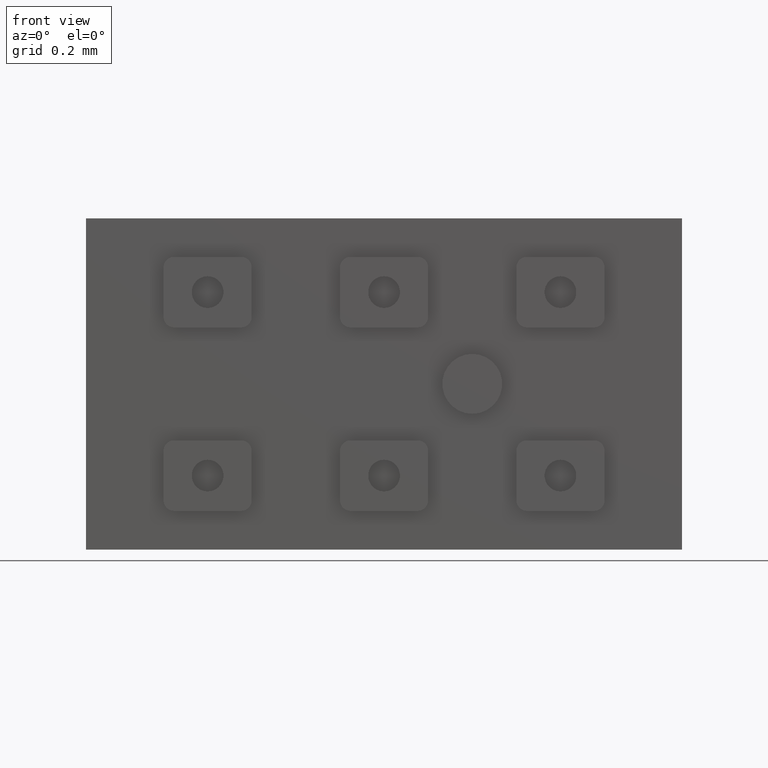
[diagram: clean part render]
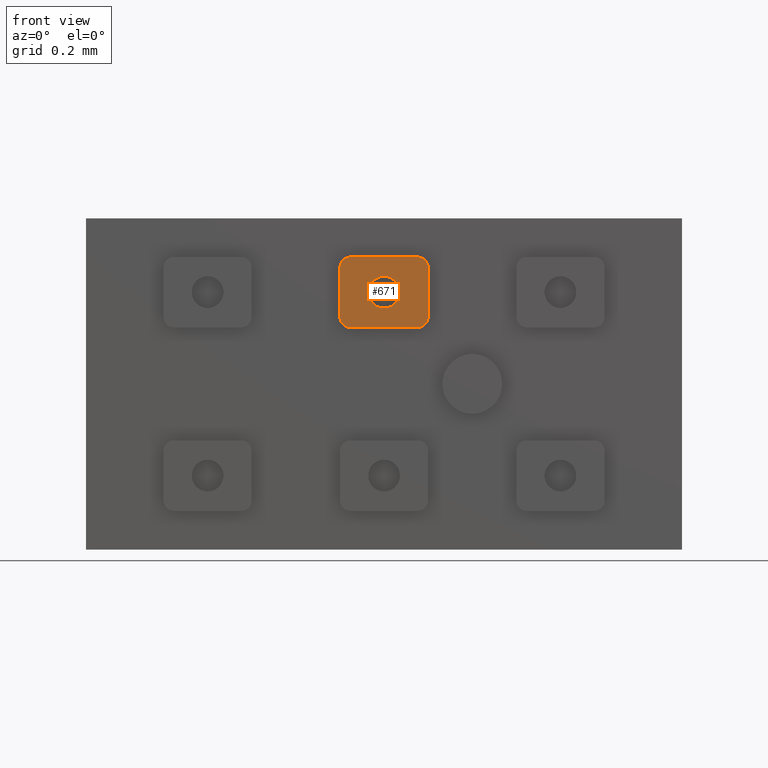
[diagram: same view with one face highlighted and labeled with its STEP entity id]
A machine part, front view. The second image highlights one B-rep face of the part: STEP entity #671.
In plain terms, the highlighted planar face has unit normal (0, 1, 0).
Its self-contained STEP definition (entity closure, byte-faithful):
#28 = DIRECTION ( 'NONE',  ( 0.000000000000000000, 1.000000000000000000, 0.000000000000000000 ) ) ;
#43 = CIRCLE ( 'NONE', #1425, 0.03000000000000002318 ) ;
#82 = VECTOR ( 'NONE', #2068, 1000.000000000000000 ) ;
#98 = EDGE_CURVE ( 'NONE', #166, #2076, #1464, .T. ) ;
#139 = DIRECTION ( 'NONE',  ( 0.000000000000000000, 0.000000000000000000, 1.000000000000000000 ) ) ;
#166 = VERTEX_POINT ( 'NONE', #505 ) ;
#232 = DIRECTION ( 'NONE',  ( 0.000000000000000000, 1.000000000000000000, 0.000000000000000000 ) ) ;
#243 = FACE_BOUND ( 'NONE', #1005, .T. ) ;
#244 = DIRECTION ( 'NONE',  ( 0.000000000000000000, 0.000000000000000000, 1.000000000000000000 ) ) ;
#289 = VERTEX_POINT ( 'NONE', #678 ) ;
#363 = ORIENTED_EDGE ( 'NONE', *, *, #2297, .F. ) ;
#373 = CIRCLE ( 'NONE', #462, 0.04500000000000001221 ) ;
#374 = ORIENTED_EDGE ( 'NONE', *, *, #2301, .F. ) ;
#434 = CARTESIAN_POINT ( 'NONE',  ( 0.1250000000000001110, -0.3749999999999999445, 0.1900000000000035272 ) ) ;
#454 = ORIENTED_EDGE ( 'NONE', *, *, #913, .F. ) ;
#462 = AXIS2_PLACEMENT_3D ( 'NONE', #1783, #641, #613 ) ;
#499 = CARTESIAN_POINT ( 'NONE',  ( -0.09500000000000002887, -0.3749999999999999445, 0.1600000000000035560 ) ) ;
#505 = CARTESIAN_POINT ( 'NONE',  ( 0.09500000000000002887, -0.3749999999999999445, 0.1600000000000035560 ) ) ;
#534 = VECTOR ( 'NONE', #2553, 1000.000000000000000 ) ;
#590 = ORIENTED_EDGE ( 'NONE', *, *, #645, .F. ) ;
#613 = DIRECTION ( 'NONE',  ( 0.000000000000000000, 0.000000000000000000, 1.000000000000000000 ) ) ;
#641 = DIRECTION ( 'NONE',  ( 0.000000000000000000, 1.000000000000000000, 0.000000000000000000 ) ) ;
#645 = EDGE_CURVE ( 'NONE', #2292, #166, #43, .T. ) ;
#671 = ADVANCED_FACE ( 'NONE', ( #243, #2037 ), #1854, .F. ) ;
#678 = CARTESIAN_POINT ( 'NONE',  ( -0.1250000000000000000, -0.3749999999999999445, 0.3300000000000035683 ) ) ;
#728 = DIRECTION ( 'NONE',  ( 0.000000000000000000, 1.000000000000000000, -0.000000000000000000 ) ) ;
#731 = CARTESIAN_POINT ( 'NONE',  ( 0.09500000000000002887, -0.3749999999999999445, 0.3600000000000035949 ) ) ;
#732 = VERTEX_POINT ( 'NONE', #1419 ) ;
#762 = CIRCLE ( 'NONE', #1635, 0.02999999999999997113 ) ;
#857 = EDGE_LOOP ( 'NONE', ( #1134, #2253, #590, #1471, #1312, #374, #363, #454 ) ) ;
#859 = DIRECTION ( 'NONE',  ( 0.000000000000000000, -0.000000000000000000, 1.000000000000000000 ) ) ;
#864 = CARTESIAN_POINT ( 'NONE',  ( -0.09500000000000002887, -0.3749999999999999445, 0.1900000000000035272 ) ) ;
#871 = VERTEX_POINT ( 'NONE', #1334 ) ;
#913 = EDGE_CURVE ( 'NONE', #732, #289, #972, .T. ) ;
#922 = EDGE_CURVE ( 'NONE', #871, #986, #373, .T. ) ;
#940 = DIRECTION ( 'NONE',  ( 0.000000000000000000, 0.000000000000000000, -1.000000000000000000 ) ) ;
#972 = LINE ( 'NONE', #987, #534 ) ;
#986 = VERTEX_POINT ( 'NONE', #2169 ) ;
#987 = CARTESIAN_POINT ( 'NONE',  ( -0.1250000000000000000, -0.3749999999999999445, 0.1900000000000035272 ) ) ;
#1005 = EDGE_LOOP ( 'NONE', ( #1530, #2353 ) ) ;
#1018 = CARTESIAN_POINT ( 'NONE',  ( -0.09500000000000002887, -0.3749999999999999445, 0.3600000000000035394 ) ) ;
#1057 = VERTEX_POINT ( 'NONE', #1412 ) ;
#1134 = ORIENTED_EDGE ( 'NONE', *, *, #1627, .F. ) ;
#1154 = DIRECTION ( 'NONE',  ( 0.000000000000000000, 1.000000000000000000, 0.000000000000000000 ) ) ;
#1168 = VECTOR ( 'NONE', #2557, 1000.000000000000000 ) ;
#1218 = VERTEX_POINT ( 'NONE', #2499 ) ;
#1310 = CIRCLE ( 'NONE', #1847, 0.04500000000000001221 ) ;
#1311 = VERTEX_POINT ( 'NONE', #731 ) ;
#1312 = ORIENTED_EDGE ( 'NONE', *, *, #1679, .F. ) ;
#1334 = CARTESIAN_POINT ( 'NONE',  ( 5.510910596163088785E-18, -0.3749999999999999445, 0.2150000000000035216 ) ) ;
#1361 = LINE ( 'NONE', #1018, #1168 ) ;
#1412 = CARTESIAN_POINT ( 'NONE',  ( 0.1250000000000001110, -0.3749999999999999445, 0.3300000000000035683 ) ) ;
#1419 = CARTESIAN_POINT ( 'NONE',  ( -0.1250000000000000000, -0.3749999999999999445, 0.1900000000000035272 ) ) ;
#1425 = AXIS2_PLACEMENT_3D ( 'NONE', #2236, #232, #1456 ) ;
#1456 = DIRECTION ( 'NONE',  ( 0.000000000000000000, 0.000000000000000000, 1.000000000000000000 ) ) ;
#1464 = LINE ( 'NONE', #1897, #82 ) ;
#1469 = CARTESIAN_POINT ( 'NONE',  ( -0.09500000000000002887, -0.3749999999999999445, 0.1900000000000035272 ) ) ;
#1471 = ORIENTED_EDGE ( 'NONE', *, *, #1477, .F. ) ;
#1477 = EDGE_CURVE ( 'NONE', #1057, #2292, #1779, .T. ) ;
#1505 = DIRECTION ( 'NONE',  ( 0.000000000000000000, 1.000000000000000000, 0.000000000000000000 ) ) ;
#1530 = ORIENTED_EDGE ( 'NONE', *, *, #1990, .T. ) ;
#1534 = AXIS2_PLACEMENT_3D ( 'NONE', #1567, #1154, #1773 ) ;
#1567 = CARTESIAN_POINT ( 'NONE',  ( -0.09500000000000002887, -0.3749999999999999445, 0.3300000000000035683 ) ) ;
#1627 = EDGE_CURVE ( 'NONE', #2076, #732, #762, .T. ) ;
#1635 = AXIS2_PLACEMENT_3D ( 'NONE', #864, #1505, #139 ) ;
#1679 = EDGE_CURVE ( 'NONE', #1311, #1057, #2535, .T. ) ;
#1700 = CIRCLE ( 'NONE', #1534, 0.02999999999999997113 ) ;
#1746 = CARTESIAN_POINT ( 'NONE',  ( 0.1250000000000000555, -0.3749999999999999445, 0.1900000000000035272 ) ) ;
#1773 = DIRECTION ( 'NONE',  ( 0.000000000000000000, 0.000000000000000000, 1.000000000000000000 ) ) ;
#1779 = LINE ( 'NONE', #434, #1945 ) ;
#1783 = CARTESIAN_POINT ( 'NONE',  ( 0.000000000000000000, -0.3749999999999999445, 0.2600000000000035061 ) ) ;
#1847 = AXIS2_PLACEMENT_3D ( 'NONE', #2049, #28, #244 ) ;
#1854 = PLANE ( 'NONE',  #2407 ) ;
#1897 = CARTESIAN_POINT ( 'NONE',  ( -0.09500000000000002887, -0.3749999999999999445, 0.1600000000000035560 ) ) ;
#1920 = CARTESIAN_POINT ( 'NONE',  ( 0.09500000000000002887, -0.3749999999999999445, 0.3300000000000035683 ) ) ;
#1923 = AXIS2_PLACEMENT_3D ( 'NONE', #1920, #728, #940 ) ;
#1945 = VECTOR ( 'NONE', #2166, 1000.000000000000000 ) ;
#1990 = EDGE_CURVE ( 'NONE', #986, #871, #1310, .T. ) ;
#2037 = FACE_OUTER_BOUND ( 'NONE', #857, .T. ) ;
#2049 = CARTESIAN_POINT ( 'NONE',  ( 0.000000000000000000, -0.3749999999999999445, 0.2600000000000035061 ) ) ;
#2068 = DIRECTION ( 'NONE',  ( -1.000000000000000000, -0.000000000000000000, -0.000000000000000000 ) ) ;
#2076 = VERTEX_POINT ( 'NONE', #499 ) ;
#2166 = DIRECTION ( 'NONE',  ( -0.000000000000000000, -0.000000000000000000, -1.000000000000000000 ) ) ;
#2169 = CARTESIAN_POINT ( 'NONE',  ( 0.000000000000000000, -0.3749999999999999445, 0.3050000000000034905 ) ) ;
#2236 = CARTESIAN_POINT ( 'NONE',  ( 0.09500000000000002887, -0.3749999999999999445, 0.1900000000000035272 ) ) ;
#2253 = ORIENTED_EDGE ( 'NONE', *, *, #98, .F. ) ;
#2292 = VERTEX_POINT ( 'NONE', #1746 ) ;
#2297 = EDGE_CURVE ( 'NONE', #289, #1218, #1700, .T. ) ;
#2301 = EDGE_CURVE ( 'NONE', #1218, #1311, #1361, .T. ) ;
#2353 = ORIENTED_EDGE ( 'NONE', *, *, #922, .T. ) ;
#2407 = AXIS2_PLACEMENT_3D ( 'NONE', #1469, #2442, #859 ) ;
#2442 = DIRECTION ( 'NONE',  ( 0.000000000000000000, 1.000000000000000000, 0.000000000000000000 ) ) ;
#2499 = CARTESIAN_POINT ( 'NONE',  ( -0.09500000000000002887, -0.3749999999999999445, 0.3600000000000035394 ) ) ;
#2535 = CIRCLE ( 'NONE', #1923, 0.03000000000000002318 ) ;
#2553 = DIRECTION ( 'NONE',  ( 0.000000000000000000, 0.000000000000000000, 1.000000000000000000 ) ) ;
#2557 = DIRECTION ( 'NONE',  ( 1.000000000000000000, 0.000000000000000000, 0.000000000000000000 ) ) ;